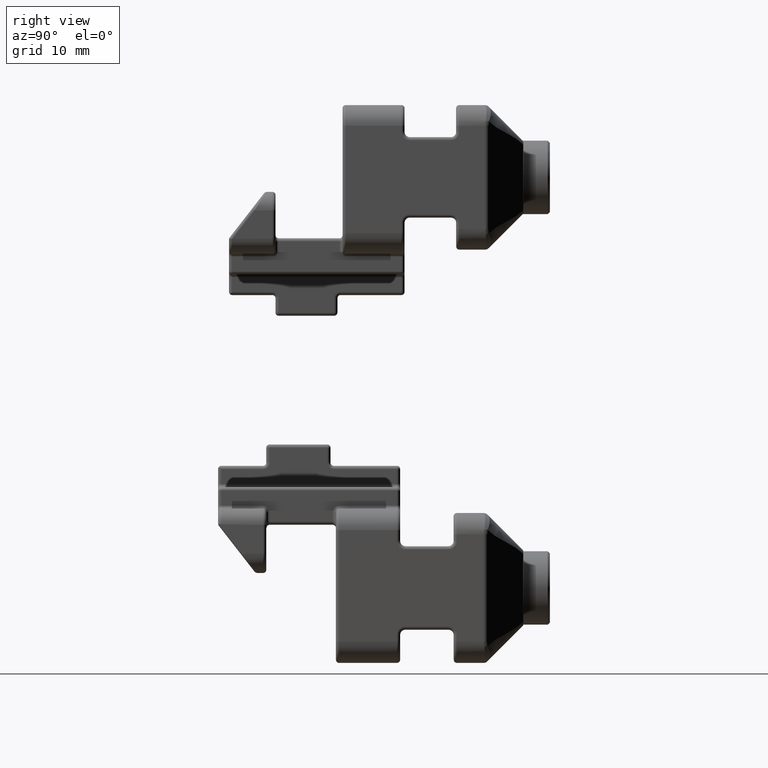
[diagram: clean part render]
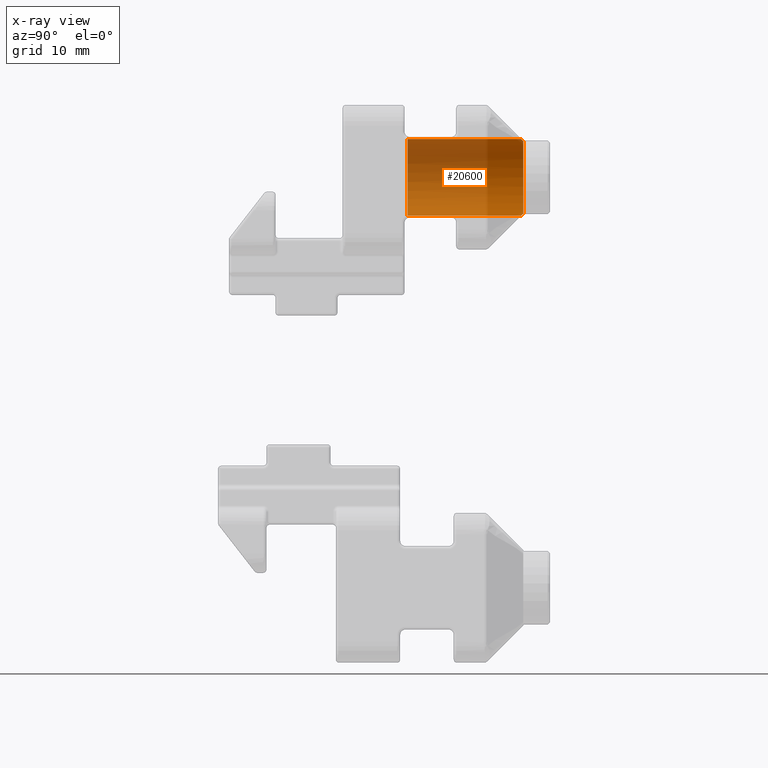
[diagram: x-ray — body ghosted, one internal face saturated and labeled with its STEP entity id]
A machine part, right view, then the same camera in x-ray: the body is ghosted and one INTERNAL B-rep face — a face not visible from any outside direction — is saturated and labeled: STEP entity #20600.
In plain terms, the highlighted cylindrical surface (partial cylindrical patch) has radius 3.589 mm, axis along (0, -1, 0).
Its self-contained STEP definition (entity closure, byte-faithful):
#345 = VERTEX_POINT ( 'NONE', #2493 ) ;
#878 = CYLINDRICAL_SURFACE ( 'NONE', #26611, 3.588999999999998600 ) ;
#1818 = CARTESIAN_POINT ( 'NONE',  ( -99.75169785715631600, 64.97620507557525100, -16.67431073726553600 ) ) ;
#1971 = EDGE_CURVE ( 'NONE', #7303, #345, #22602, .T. ) ;
#2265 = CARTESIAN_POINT ( 'NONE',  ( -99.75169785715631600, 54.30620507560786300, -23.85231073723291600 ) ) ;
#2493 = CARTESIAN_POINT ( 'NONE',  ( -100.9156978571563200, 65.17020507557525400, -16.86831073726553100 ) ) ;
#2596 = LINE ( 'NONE', #16316, #8318 ) ;
#3668 = CIRCLE ( 'NONE', #15422, 3.588999999999998600 ) ;
#4013 = CARTESIAN_POINT ( 'NONE',  ( -100.1486504791892300, 64.97620507557525100, -23.85231073726553300 ) ) ;
#4937 = EDGE_CURVE ( 'NONE', #345, #20382, #10846, .T. ) ;
#5791 = VERTEX_POINT ( 'NONE', #27306 ) ;
#6383 = CARTESIAN_POINT ( 'NONE',  ( -100.9156978571563500, 65.17020507557525400, -23.65831073726552300 ) ) ;
#7303 = VERTEX_POINT ( 'NONE', #10089 ) ;
#8318 = VECTOR ( 'NONE', #18717, 1000.000000000000000 ) ;
#9027 = ORIENTED_EDGE ( 'NONE', *, *, #16832, .F. ) ;
#9588 = AXIS2_PLACEMENT_3D ( 'NONE', #12193, #12052, #12085 ) ;
#10089 = CARTESIAN_POINT ( 'NONE',  ( -100.9156978571563500, 65.17020507557525400, -23.65831073726552300 ) ) ;
#10495 = EDGE_CURVE ( 'NONE', #20382, #5791, #23989, .T. ) ;
#10846 =( BOUNDED_CURVE ( )  B_SPLINE_CURVE ( 3, ( #11586, #18258, #20146, #1818 ),
 .UNSPECIFIED., .F., .F. ) 
 B_SPLINE_CURVE_WITH_KNOTS ( ( 4, 4 ),
 ( 5.952887952350333300, 6.283185307179586200 ),
 .UNSPECIFIED. ) 
 CURVE ( )  GEOMETRIC_REPRESENTATION_ITEM ( )  RATIONAL_B_SPLINE_CURVE ( ( 1.000000000000000000, 0.9909292825547624300, 0.9909292825547624300, 1.000000000000000000 ) ) 
 REPRESENTATION_ITEM ( '' )  );
#11586 = CARTESIAN_POINT ( 'NONE',  ( -100.9156978571563200, 65.17020507557525400, -16.86831073726553100 ) ) ;
#12052 = DIRECTION ( 'NONE',  ( -0.0000000000000000000, 1.000000000000000000, -0.0000000000000000000 ) ) ;
#12085 = DIRECTION ( 'NONE',  ( 0.0000000000000000000, 0.0000000000000000000, -1.000000000000000000 ) ) ;
#12178 = CARTESIAN_POINT ( 'NONE',  ( -99.75169785715631600, 64.97620507557525100, -23.85231073726553300 ) ) ;
#12193 = CARTESIAN_POINT ( 'NONE',  ( -99.75169785715631600, 65.17020507557525400, -20.26331073726553500 ) ) ;
#12889 = ORIENTED_EDGE ( 'NONE', *, *, #1971, .T. ) ;
#14369 = DIRECTION ( 'NONE',  ( -0.0000000000000000000, 1.000000000000000000, -0.0000000000000000000 ) ) ;
#15422 = AXIS2_PLACEMENT_3D ( 'NONE', #28631, #14369, #30994 ) ;
#16316 = CARTESIAN_POINT ( 'NONE',  ( -99.75169785715631600, 46.71567286542791200, -23.85231073726553300 ) ) ;
#16457 = VERTEX_POINT ( 'NONE', #12178 ) ;
#16832 = EDGE_CURVE ( 'NONE', #16457, #20397, #2596, .T. ) ;
#17676 = EDGE_CURVE ( 'NONE', #20397, #5791, #3668, .T. ) ;
#18258 = CARTESIAN_POINT ( 'NONE',  ( -100.5402021336116900, 65.04146368464567700, -16.73956934633594800 ) ) ;
#18717 = DIRECTION ( 'NONE',  ( 0.0000000000000000000, -1.000000000000000000, 0.0000000000000000000 ) ) ;
#19131 = VECTOR ( 'NONE', #28356, 1000.000000000000000 ) ;
#20146 = CARTESIAN_POINT ( 'NONE',  ( -100.1486504791892300, 64.97620507557526500, -16.67431073726553600 ) ) ;
#20382 = VERTEX_POINT ( 'NONE', #23789 ) ;
#20397 = VERTEX_POINT ( 'NONE', #2265 ) ;
#20600 = ADVANCED_FACE ( 'NONE', ( #22193 ), #878, .F. ) ;
#20705 = CARTESIAN_POINT ( 'NONE',  ( -99.75169785715631600, 64.97620507557525100, -23.85231073726553300 ) ) ;
#22118 = ORIENTED_EDGE ( 'NONE', *, *, #17676, .F. ) ;
#22193 = FACE_OUTER_BOUND ( 'NONE', #23737, .T. ) ;
#22577 = ORIENTED_EDGE ( 'NONE', *, *, #10495, .T. ) ;
#22586 = DIRECTION ( 'NONE',  ( 0.0000000000000000000, -1.000000000000000000, 0.0000000000000000000 ) ) ;
#22602 = CIRCLE ( 'NONE', #9588, 3.588999999999998600 ) ;
#23090 = ORIENTED_EDGE ( 'NONE', *, *, #28761, .F. ) ;
#23737 = EDGE_LOOP ( 'NONE', ( #27987, #22577, #22118, #9027, #23090, #12889 ) ) ;
#23789 = CARTESIAN_POINT ( 'NONE',  ( -99.75169785715631600, 64.97620507557525100, -16.67431073726553600 ) ) ;
#23989 = LINE ( 'NONE', #25950, #19131 ) ;
#25381 =( BOUNDED_CURVE ( )  B_SPLINE_CURVE ( 3, ( #6383, #30198, #4013, #20705 ),
 .UNSPECIFIED., .F., .T. ) 
 B_SPLINE_CURVE_WITH_KNOTS ( ( 4, 4 ),
 ( 5.952887952350325300, 6.283185307179586200 ),
 .UNSPECIFIED. ) 
 CURVE ( )  GEOMETRIC_REPRESENTATION_ITEM ( )  RATIONAL_B_SPLINE_CURVE ( ( 1.000000000000000000, 0.9909292825547619800, 0.9909292825547619800, 1.000000000000000000 ) ) 
 REPRESENTATION_ITEM ( '' )  );
#25950 = CARTESIAN_POINT ( 'NONE',  ( -99.75169785715631600, 46.71567286542791200, -16.67431073726553600 ) ) ;
#26611 = AXIS2_PLACEMENT_3D ( 'NONE', #27402, #22586, #27503 ) ;
#27306 = CARTESIAN_POINT ( 'NONE',  ( -99.75169785715631600, 54.30620507560786300, -16.67431073729815000 ) ) ;
#27402 = CARTESIAN_POINT ( 'NONE',  ( -99.75169785715631600, 46.71567286542791200, -20.26331073726553500 ) ) ;
#27503 = DIRECTION ( 'NONE',  ( 0.0000000000000000000, 0.0000000000000000000, -1.000000000000000000 ) ) ;
#27987 = ORIENTED_EDGE ( 'NONE', *, *, #4937, .T. ) ;
#28356 = DIRECTION ( 'NONE',  ( 0.0000000000000000000, -1.000000000000000000, 0.0000000000000000000 ) ) ;
#28631 = CARTESIAN_POINT ( 'NONE',  ( -99.75169785715631600, 54.30620507560786300, -20.26331073726553500 ) ) ;
#28761 = EDGE_CURVE ( 'NONE', #7303, #16457, #25381, .T. ) ;
#30198 = CARTESIAN_POINT ( 'NONE',  ( -100.5402021336117100, 65.04146368464564900, -23.78705212819512500 ) ) ;
#30994 = DIRECTION ( 'NONE',  ( 0.0000000000000000000, 0.0000000000000000000, -1.000000000000000000 ) ) ;